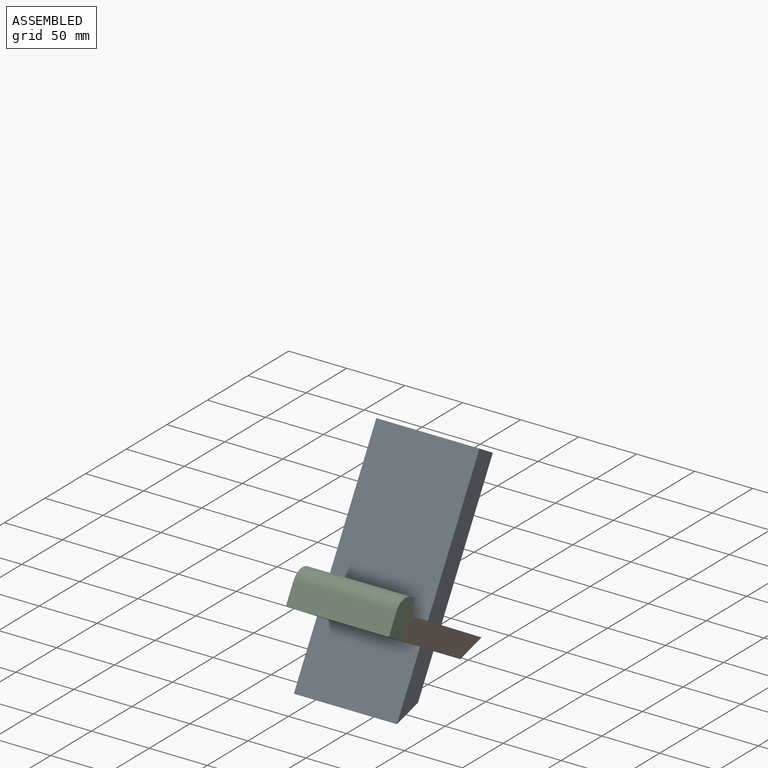
[diagram: assembled view]
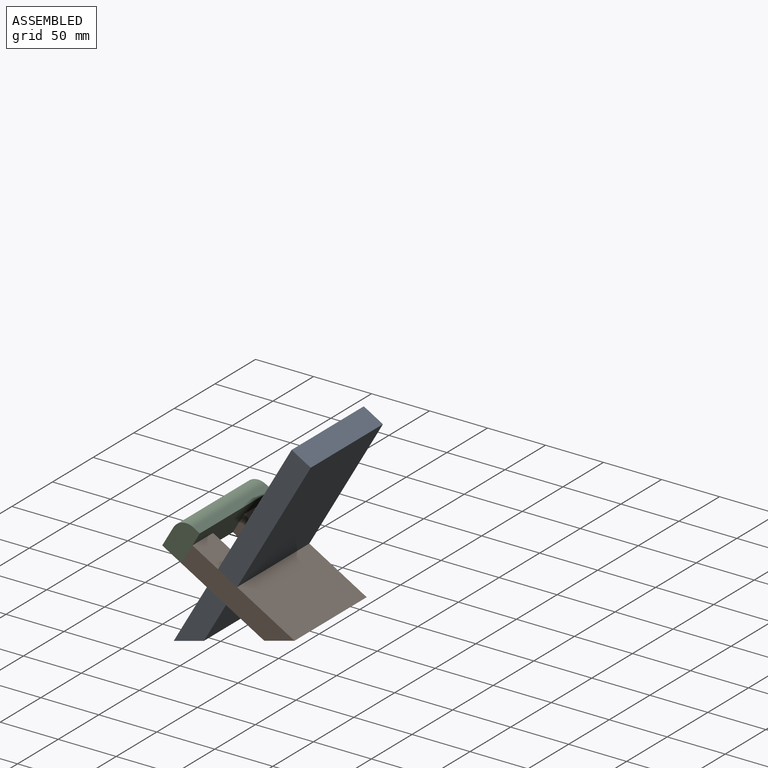
[diagram: assembled view, second angle]
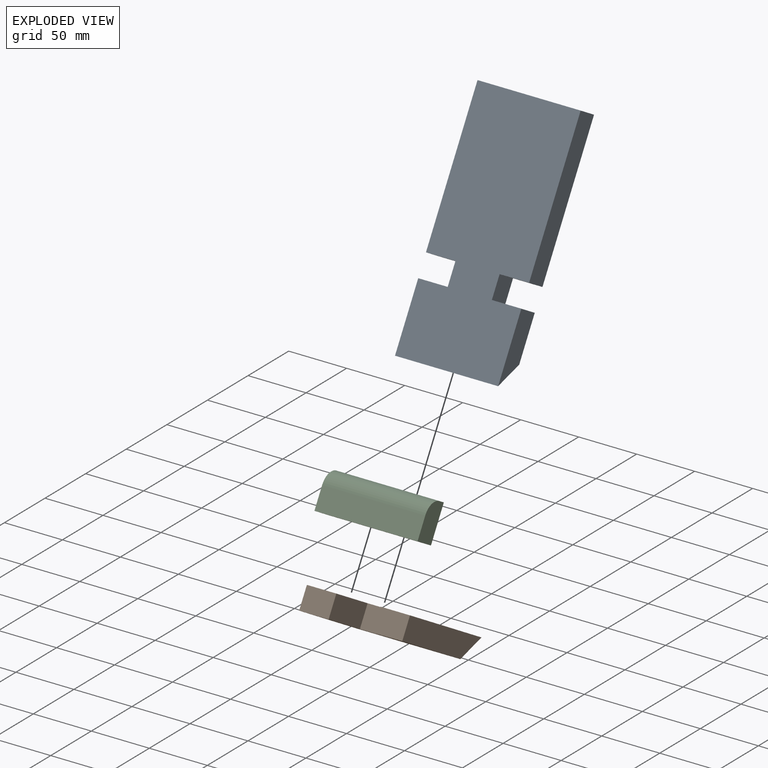
[diagram: exploded view]
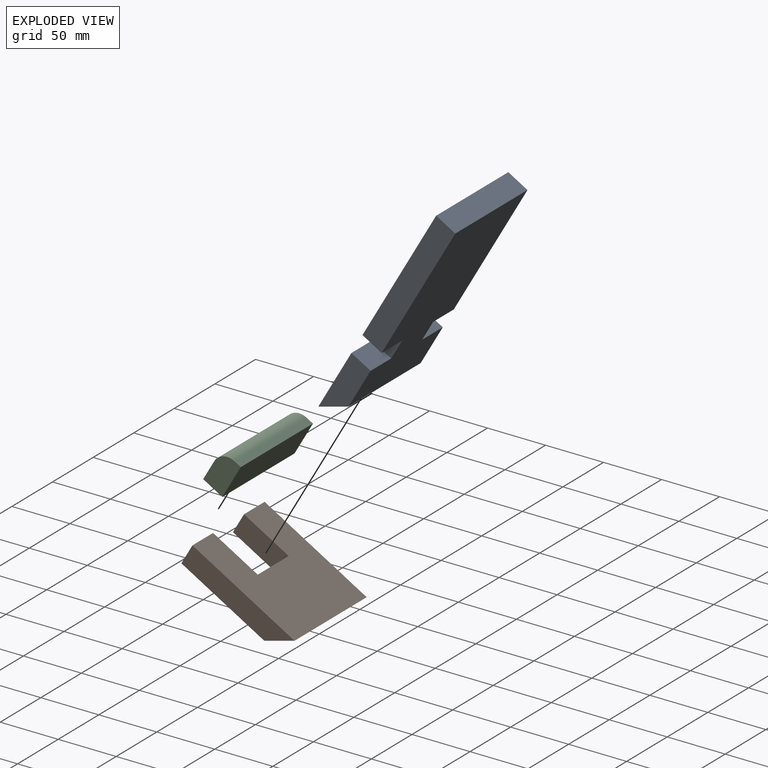
[diagram: exploded view, second angle]
ASSEMBLY  parts=3 mates=6
PART A: 14 faces, bbox 88.9x19.1x203.2 mm
  f0: plane 127x19.05mm, normal (-1,0,0), area 2419.3mm2, adj f1,f3,f4,f6
  f1: plane 203.2x88.9mm, normal (0,-1,0), area 17096.7mm2, adj f0,f2,f3,f5,f6,f7,f8,f9
  f2: plane 57.15x19.05mm, normal (-1,0,0), area 907.3mm2, adj f1,f4,f5,f7
  f3: plane 88.9x19.05mm, normal (0,0,1), area 1693.5mm2, adj f0,f1,f4,f9
  f4: plane 184.15x88.9mm, normal (0,1,0), area 15403.2mm2, adj f0,f2,f3,f5,f6,f7,f8,f9
  f5: plane 88.9x19.05mm, normal (0,0.71,-0.71), area 2395mm2, adj f1,f2,f4,f10
  f6: plane 25.4x19.05mm, normal (0,0,-1), area 483.9mm2, adj f0,f1,f4,f8
  f7: plane 25.4x19.05mm, normal (0,0,1), area 483.9mm2, adj f1,f2,f4,f8
  f8: plane 19.05x19.05mm, normal (-1,0,0), area 362.9mm2, adj f1,f4,f6,f7
  f9: plane 127x19.05mm, normal (1,0,0), area 2419.3mm2, adj f1,f3,f4,f11
  f10: plane 57.15x19.05mm, normal (1,0,0), area 907.3mm2, adj f1,f4,f5,f12
  f11: plane 25.4x19.05mm, normal (0,0,-1), area 483.9mm2, adj f1,f4,f9,f13
  f12: plane 25.4x19.05mm, normal (0,0,1), area 483.9mm2, adj f1,f4,f10,f13
  f13: plane 19.05x19.05mm, normal (1,0,0), area 362.9mm2, adj f1,f4,f11,f12
PART B: 10 faces, bbox 88.9x19.1x101.6 mm
  f0: plane 88.9x82.55mm, normal (0,-1,0), area 5645.2mm2, adj f1,f3,f4,f5,f6,f7,f8,f9
  f1: plane 25.4x19.05mm, normal (0,0,1), area 483.9mm2, adj f0,f2,f3,f5
  f2: plane 101.6x88.9mm, normal (0,1,0), area 7338.7mm2, adj f1,f3,f4,f5,f6,f7,f8,f9
  f3: plane 101.6x19.05mm, normal (-1,0,0), area 1754mm2, adj f0,f1,f2,f4
  f4: plane 88.9x19.05mm, normal (0,-0.71,-0.71), area 2395mm2, adj f0,f2,f3,f8
  f5: plane 44.45x19.05mm, normal (1,0,0), area 846.8mm2, adj f0,f1,f2,f6
  f6: plane 38.1x19.05mm, normal (0,0,1), area 725.8mm2, adj f0,f2,f5,f9
  f7: plane 25.4x19.05mm, normal (0,0,1), area 483.9mm2, adj f0,f2,f8,f9
  f8: plane 101.6x19.05mm, normal (1,0,0), area 1754mm2, adj f0,f2,f4,f7
  f9: plane 44.45x19.05mm, normal (-1,0,0), area 846.8mm2, adj f0,f2,f6,f7
PART C: 7 faces, bbox 88.9x19.1x31.8 mm
  f0: plane 88.9x19.05mm, normal (0,0,-1), area 1693.5mm2, adj f1,f3,f4,f5
  f1: plane 31.75x19.05mm, normal (1,0,0), area 570.2mm2, adj f0,f2,f4,f5,f6
  f2: plane 88.9x6.35mm, normal (0,0,1), area 564.5mm2, adj f1,f3,f5,f6
  f3: plane 31.75x19.05mm, normal (-1,0,0), area 570.2mm2, adj f0,f2,f4,f5,f6
  f4: plane 88.9x19.05mm, normal (0,1,0), area 1693.5mm2, adj f0,f1,f3,f6
  f5: plane 88.9x31.75mm, normal (0,-1,0), area 2822.6mm2, adj f0,f1,f2,f3
  f6: cylinder r=12.7mm len=88.9mm, axis (1,0,0), area 1773.5mm2, adj f1,f2,f3,f4
PLACE A rot(axis=(-1,0,0),30deg) t=(-19.81,-523.12,-76.1)mm
PLACE B rot(axis=(1,0,0),60deg) t=(-19.81,-428.56,-64.71)mm
PLACE C rot(axis=(0,0.26,0.97),180deg) t=(-64.26,-516.55,-13.91)mm
MATE planar C.f1 <-> B.f3  axis (-1,0,0) through (-64.26,-516.9,3.72)mm
MATE planar B.f0 <-> A.f7  axis (0,-0.5,-0.87) through (-19.81,-475.85,-37.4)mm
MATE planar B.f3 <-> A.f0  axis (-1,0,0) through (-64.26,-471.61,-28.47)mm
MATE planar B.f6 <-> A.f4  axis (0,-0.87,0.5) through (-19.81,-468.53,-19.63)mm
MATE planar C.f5 <-> B.f7  axis (0,0.87,-0.5) through (-19.81,-508.61,-0.16)mm
MATE planar C.f0 <-> B.f0  axis (0,-0.5,-0.87) through (-19.81,-524.79,-9.14)mm
